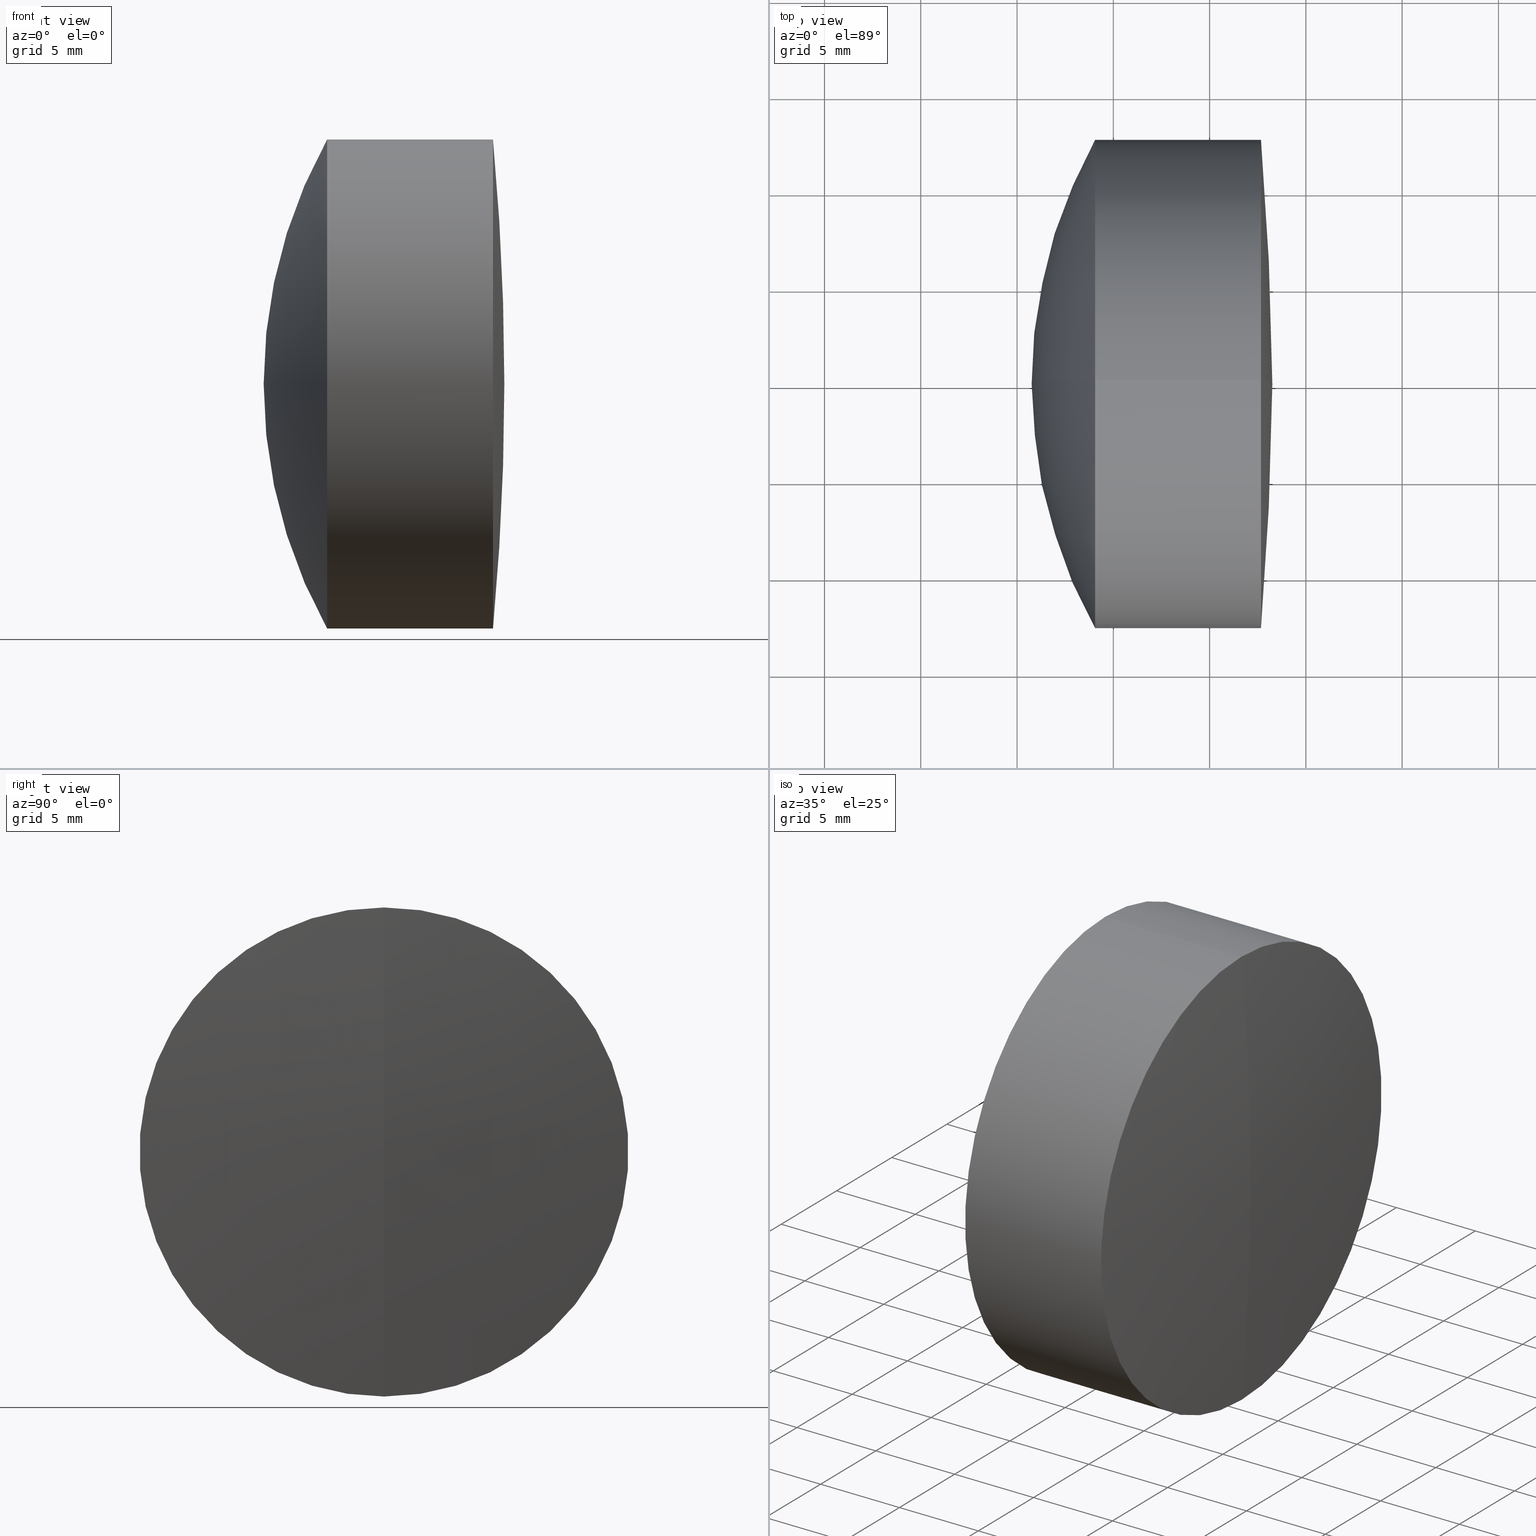
[diagram: canonical four-view strip — front | top / right | iso, engineering-drawing reading convention]
A machine part, canonical four-view strip (front | top / right | iso — engineering-drawing reading convention). The complete STEP part file that produces these views, byte-faithful:
ISO-10303-21;
HEADER;
FILE_DESCRIPTION (( 'STEP AP214' ),
    '1' );
FILE_NAME ('145116.STEP',
    '2019-05-31T03:07:53',
    ( 'user' ),
    ( '΢���й�' ),
    'SwSTEP 2.0',
    'SolidWorks 2016',
    '' );
FILE_SCHEMA (( 'AUTOMOTIVE_DESIGN' ));
ENDSEC;

DATA;
#1 = CARTESIAN_POINT ( 'NONE',  ( 285.7589865545651300, 0.0000000000000000000, 8.241918098200011900E-015 ) ) ;
#2 = DIRECTION ( 'NONE',  ( 0.0000000000000000000, 0.0000000000000000000, 1.000000000000000000 ) ) ;
#3 = ORIENTED_EDGE ( 'NONE', *, *, #254, .F. ) ;
#4 = VECTOR ( 'NONE', #186, 1000.000000000000000 ) ;
#5 = ADVANCED_FACE ( 'NONE', ( #118 ), #154, .T. ) ;
#6 = FILL_AREA_STYLE_COLOUR ( '', #114 ) ;
#7 = EDGE_LOOP ( 'NONE', ( #272, #172, #19, #205 ) ) ;
#8 = APPLICATION_PROTOCOL_DEFINITION ( 'draft international standard', 'automotive_design', 1998, #170 ) ;
#9 = DIRECTION ( 'NONE',  ( -1.000000000000000000, -0.0000000000000000000, -0.0000000000000000000 ) ) ;
#10 = ORIENTED_EDGE ( 'NONE', *, *, #284, .T. ) ;
#11 = MECHANICAL_DESIGN_GEOMETRIC_PRESENTATION_REPRESENTATION (  '', ( #321 ), #29 ) ;
#12 = DIRECTION ( 'NONE',  ( 0.0000000000000000000, 1.000000000000000000, 0.0000000000000000000 ) ) ;
#13 = MANIFOLD_SOLID_BREP ( '��ת3', #105 ) ;
#14 = ORIENTED_EDGE ( 'NONE', *, *, #165, .T. ) ;
#15 =( NAMED_UNIT ( * ) PLANE_ANGLE_UNIT ( ) SI_UNIT ( $, .RADIAN. ) );
#16 = PRESENTATION_LAYER_ASSIGNMENT (  '', '', ( #345 ) ) ;
#17 = ADVANCED_FACE ( 'NONE', ( #267 ), #291, .T. ) ;
#18 = MECHANICAL_DESIGN_GEOMETRIC_PRESENTATION_REPRESENTATION (  '', ( #329 ), #37 ) ;
#19 = ORIENTED_EDGE ( 'NONE', *, *, #274, .F. ) ;
#20 = CARTESIAN_POINT ( 'NONE',  ( 279.0543419790191700, -1.555301434917138400E-015, 12.70000000000001000 ) ) ;
#21 = CARTESIAN_POINT ( 'NONE',  ( 281.5537749866366000, 0.0000000000000000000, 0.0000000000000000000 ) ) ;
#22 = ORIENTED_EDGE ( 'NONE', *, *, #165, .F. ) ;
#23 = FACE_OUTER_BOUND ( 'NONE', #84, .T. ) ;
#24 = SURFACE_SIDE_STYLE ('',( #136 ) ) ;
#25 = DIRECTION ( 'NONE',  ( 0.0000000000000000000, 0.0000000000000000000, -1.000000000000000000 ) ) ;
#26 = DIRECTION ( 'NONE',  ( -0.0000000000000000000, 1.000000000000000000, 1.224646799147353200E-016 ) ) ;
#27 = CARTESIAN_POINT ( 'NONE',  ( 151.1689865545651800, 0.0000000000000000000, 0.0000000000000000000 ) ) ;
#28 = DIRECTION ( 'NONE',  ( -0.0000000000000000000, 1.000000000000000000, 1.224646799147353200E-016 ) ) ;
#29 =( GEOMETRIC_REPRESENTATION_CONTEXT ( 3 ) GLOBAL_UNCERTAINTY_ASSIGNED_CONTEXT ( ( #176 ) ) GLOBAL_UNIT_ASSIGNED_CONTEXT ( ( #61, #135, #81 ) ) REPRESENTATION_CONTEXT ( 'NONE', 'WORKASPACE' ) );
#30 = DIRECTION ( 'NONE',  ( 0.0000000000000000000, 0.0000000000000000000, -1.000000000000000000 ) ) ;
#31 = VERTEX_POINT ( 'NONE', #156 ) ;
#32 = DIRECTION ( 'NONE',  ( -1.000000000000000000, -0.0000000000000000000, -0.0000000000000000000 ) ) ;
#33 = CIRCLE ( 'NONE', #155, 12.69999999999997800 ) ;
#34 =( NAMED_UNIT ( * ) PLANE_ANGLE_UNIT ( ) SI_UNIT ( $, .RADIAN. ) );
#35 = ORIENTED_EDGE ( 'NONE', *, *, #294, .F. ) ;
#36 = MECHANICAL_DESIGN_GEOMETRIC_PRESENTATION_REPRESENTATION (  '', ( #345 ), #54 ) ;
#37 =( GEOMETRIC_REPRESENTATION_CONTEXT ( 3 ) GLOBAL_UNCERTAINTY_ASSIGNED_CONTEXT ( ( #298 ) ) GLOBAL_UNIT_ASSIGNED_CONTEXT ( ( #305, #110, #333 ) ) REPRESENTATION_CONTEXT ( 'NONE', 'WORKASPACE' ) );
#38 = DIRECTION ( 'NONE',  ( 0.0000000000000000000, 1.000000000000000000, 0.0000000000000000000 ) ) ;
#39 = SURFACE_STYLE_USAGE ( .BOTH. , #43 ) ;
#40 = ORIENTED_EDGE ( 'NONE', *, *, #235, .T. ) ;
#41 = CYLINDRICAL_SURFACE ( 'NONE', #231, 12.70000000000000800 ) ;
#42 = SHAPE_DEFINITION_REPRESENTATION ( #316, #90 ) ;
#43 = SURFACE_SIDE_STYLE ('',( #337 ) ) ;
#44 = CARTESIAN_POINT ( 'NONE',  ( 279.0543419790191700, 0.0000000000000000000, -12.69999999999999900 ) ) ;
#45 = ORIENTED_EDGE ( 'NONE', *, *, #284, .F. ) ;
#46 = DIRECTION ( 'NONE',  ( 0.0000000000000000000, 0.0000000000000000000, -1.000000000000000000 ) ) ;
#47 = AXIS2_PLACEMENT_3D ( 'NONE', #214, #28, #195 ) ;
#48 = EDGE_LOOP ( 'NONE', ( #10, #158, #339 ) ) ;
#49 = LINE ( 'NONE', #145, #177 ) ;
#50 = CARTESIAN_POINT ( 'NONE',  ( 124.5233095260452400, 0.0000000000000000000, 0.0000000000000000000 ) ) ;
#51 = EDGE_LOOP ( 'NONE', ( #336, #311, #229, #45 ) ) ;
#52 = DIRECTION ( 'NONE',  ( 0.0000000000000000000, 0.0000000000000000000, 1.000000000000000000 ) ) ;
#53 = EDGE_CURVE ( 'NONE', #240, #123, #332, .T. ) ;
#54 =( GEOMETRIC_REPRESENTATION_CONTEXT ( 3 ) GLOBAL_UNCERTAINTY_ASSIGNED_CONTEXT ( ( #247 ) ) GLOBAL_UNIT_ASSIGNED_CONTEXT ( ( #209, #15, #98 ) ) REPRESENTATION_CONTEXT ( 'NONE', 'WORKASPACE' ) );
#55 = APPLICATION_PROTOCOL_DEFINITION ( 'draft international standard', 'automotive_design', 1998, #64 ) ;
#56 = DIRECTION ( 'NONE',  ( 0.0000000000000000000, 1.224646799147353200E-016, -1.000000000000000000 ) ) ;
#57 = ORIENTED_EDGE ( 'NONE', *, *, #254, .T. ) ;
#58 = FACE_OUTER_BOUND ( 'NONE', #48, .T. ) ;
#59 = EDGE_CURVE ( 'NONE', #224, #142, #273, .T. ) ;
#60 = CIRCLE ( 'NONE', #47, 21.28000000000000100 ) ;
#61 =( LENGTH_UNIT ( ) NAMED_UNIT ( * ) SI_UNIT ( .MILLI., .METRE. ) );
#62 = ORIENTED_EDGE ( 'NONE', *, *, #221, .F. ) ;
#63 = FACE_OUTER_BOUND ( 'NONE', #7, .T. ) ;
#64 = APPLICATION_CONTEXT ( 'automotive_design' ) ;
#65 = DIRECTION ( 'NONE',  ( 0.0000000000000000000, 0.0000000000000000000, -1.000000000000000000 ) ) ;
#66 = CYLINDRICAL_SURFACE ( 'NONE', #147, 12.69999999999997100 ) ;
#67 = ADVANCED_FACE ( 'NONE', ( #63 ), #290, .T. ) ;
#68 =( NAMED_UNIT ( * ) SI_UNIT ( $, .STERADIAN. ) SOLID_ANGLE_UNIT ( ) );
#69 = EDGE_LOOP ( 'NONE', ( #174, #128, #132 ) ) ;
#70 = DIRECTION ( 'NONE',  ( 0.0000000000000000000, -1.224646799147353000E-016, 1.000000000000000000 ) ) ;
#71 = SURFACE_STYLE_USAGE ( .BOTH. , #24 ) ;
#72 = AXIS2_PLACEMENT_3D ( 'NONE', #317, #153, #243 ) ;
#73 = PRODUCT ( '145116', '145116', '', ( #164 ) ) ;
#74 = CIRCLE ( 'NONE', #92, 12.70000000000000800 ) ;
#75 = SPHERICAL_SURFACE ( 'NONE', #251, 21.27999999999999400 ) ;
#76 = DIRECTION ( 'NONE',  ( 0.0000000000000000000, -1.000000000000000000, 0.0000000000000000000 ) ) ;
#77 = DIRECTION ( 'NONE',  ( -1.000000000000000000, -0.0000000000000000000, -0.0000000000000000000 ) ) ;
#78 = ORIENTED_EDGE ( 'NONE', *, *, #53, .F. ) ;
#79 = DIRECTION ( 'NONE',  ( 0.0000000000000000000, 0.0000000000000000000, 1.000000000000000000 ) ) ;
#80 = CIRCLE ( 'NONE', #108, 12.70000000000000800 ) ;
#81 =( NAMED_UNIT ( * ) SI_UNIT ( $, .STERADIAN. ) SOLID_ANGLE_UNIT ( ) );
#82 = AXIS2_PLACEMENT_3D ( 'NONE', #146, #77, #340 ) ;
#83 = DIRECTION ( 'NONE',  ( 0.0000000000000000000, 0.0000000000000000000, 1.000000000000000000 ) ) ;
#84 = EDGE_LOOP ( 'NONE', ( #306, #278, #327 ) ) ;
#85 = AXIS2_PLACEMENT_3D ( 'NONE', #192, #217, #183 ) ;
#86 = DIRECTION ( 'NONE',  ( 0.0000000000000000000, 0.0000000000000000000, 1.000000000000000000 ) ) ;
#87 = DIRECTION ( 'NONE',  ( 0.0000000000000000000, -1.224646799147353000E-016, 1.000000000000000000 ) ) ;
#88 = VERTEX_POINT ( 'NONE', #180 ) ;
#89 = SPHERICAL_SURFACE ( 'NONE', #187, 26.11999999999998300 ) ;
#90 = ADVANCED_BREP_SHAPE_REPRESENTATION ( '145116', ( #232, #13, #85 ), #295 ) ;
#91 = DIRECTION ( 'NONE',  ( -1.000000000000000000, -0.0000000000000000000, -0.0000000000000000000 ) ) ;
#92 = AXIS2_PLACEMENT_3D ( 'NONE', #181, #32, #83 ) ;
#93 = CARTESIAN_POINT ( 'NONE',  ( 281.5537749866366000, 0.0000000000000000000, 0.0000000000000000000 ) ) ;
#94 = DIRECTION ( 'NONE',  ( 0.0000000000000000000, 1.000000000000000000, -0.0000000000000000000 ) ) ;
#95 = VERTEX_POINT ( 'NONE', #44 ) ;
#96 = CARTESIAN_POINT ( 'NONE',  ( 264.4789865545651500, 0.0000000000000000000, 6.938893903907228400E-015 ) ) ;
#97 = FILL_AREA_STYLE ('',( #264 ) ) ;
#98 =( NAMED_UNIT ( * ) SI_UNIT ( $, .STERADIAN. ) SOLID_ANGLE_UNIT ( ) );
#99 = AXIS2_PLACEMENT_3D ( 'NONE', #237, #104, #120 ) ;
#100 = DIRECTION ( 'NONE',  ( 0.0000000000000000000, 0.0000000000000000000, 1.000000000000000000 ) ) ;
#101 = PRODUCT_DEFINITION ( 'δ֪', '', #122, #190 ) ;
#102 = PRESENTATION_STYLE_ASSIGNMENT (( #39 ) ) ;
#103 = CARTESIAN_POINT ( 'NONE',  ( 301.8789865545651300, 0.0000000000000000000, 8.762794518350186300E-015 ) ) ;
#104 = DIRECTION ( 'NONE',  ( -0.0000000000000000000, -1.000000000000000000, -0.0000000000000000000 ) ) ;
#105 = CLOSED_SHELL ( 'NONE', ( #276, #244, #304, #308, #17, #5 ) ) ;
#106 = PRESENTATION_STYLE_ASSIGNMENT (( #133 ) ) ;
#107 = CARTESIAN_POINT ( 'NONE',  ( -0.5519199926577972300, 0.0000000000000000000, 0.0000000000000000000 ) ) ;
#108 = AXIS2_PLACEMENT_3D ( 'NONE', #143, #9, #86 ) ;
#109 = ORIENTED_EDGE ( 'NONE', *, *, #293, .T. ) ;
#110 =( NAMED_UNIT ( * ) PLANE_ANGLE_UNIT ( ) SI_UNIT ( $, .RADIAN. ) );
#111 = ADVANCED_FACE ( 'NONE', ( #58 ), #152, .T. ) ;
#112 = EDGE_CURVE ( 'NONE', #123, #224, #297, .T. ) ;
#113 = CLOSED_SHELL ( 'NONE', ( #197, #67, #111, #166, #193, #314 ) ) ;
#114 = COLOUR_RGB ( '',1.000000000000000000, 1.000000000000000000, 1.000000000000000000 ) ;
#115 = UNCERTAINTY_MEASURE_WITH_UNIT (LENGTH_MEASURE( 1.000000000000000100E-005 ), #270, 'distance_accuracy_value', 'NONE');
#116 = CARTESIAN_POINT ( 'NONE',  ( 151.1689865545651800, 0.0000000000000000000, 0.0000000000000000000 ) ) ;
#117 = ORIENTED_EDGE ( 'NONE', *, *, #221, .T. ) ;
#118 = FACE_OUTER_BOUND ( 'NONE', #300, .T. ) ;
#119 = DIRECTION ( 'NONE',  ( 0.0000000000000000000, 0.0000000000000000000, 1.000000000000000000 ) ) ;
#120 = DIRECTION ( 'NONE',  ( 0.0000000000000000000, 0.0000000000000000000, -1.000000000000000000 ) ) ;
#121 = AXIS2_PLACEMENT_3D ( 'NONE', #96, #157, #25 ) ;
#122 = PRODUCT_DEFINITION_FORMATION_WITH_SPECIFIED_SOURCE ( '�κ�', '', #73, .NOT_KNOWN. ) ;
#123 = VERTEX_POINT ( 'NONE', #241 ) ;
#124 = DIRECTION ( 'NONE',  ( -1.000000000000000000, -0.0000000000000000000, -0.0000000000000000000 ) ) ;
#125 = VERTEX_POINT ( 'NONE', #1 ) ;
#126 = CARTESIAN_POINT ( 'NONE',  ( 287.6694557845278800, 0.0000000000000000000, 0.0000000000000000000 ) ) ;
#127 = DIRECTION ( 'NONE',  ( -1.000000000000000000, -0.0000000000000000000, -0.0000000000000000000 ) ) ;
#128 = ORIENTED_EDGE ( 'NONE', *, *, #320, .T. ) ;
#129 = AXIS2_PLACEMENT_3D ( 'NONE', #220, #335, #70 ) ;
#130 = CARTESIAN_POINT ( 'NONE',  ( 151.1689865545651800, 0.0000000000000000000, 0.0000000000000000000 ) ) ;
#131 = ORIENTED_EDGE ( 'NONE', *, *, #137, .T. ) ;
#132 = ORIENTED_EDGE ( 'NONE', *, *, #196, .T. ) ;
#133 = SURFACE_STYLE_USAGE ( .BOTH. , #279 ) ;
#134 = FACE_OUTER_BOUND ( 'NONE', #51, .T. ) ;
#135 =( NAMED_UNIT ( * ) PLANE_ANGLE_UNIT ( ) SI_UNIT ( $, .RADIAN. ) );
#136 = SURFACE_STYLE_FILL_AREA ( #97 ) ;
#137 = EDGE_CURVE ( 'NONE', #125, #123, #285, .T. ) ;
#138 = AXIS2_PLACEMENT_3D ( 'NONE', #207, #150, #268 ) ;
#139 = DIRECTION ( 'NONE',  ( 0.0000000000000000000, 1.000000000000000000, 0.0000000000000000000 ) ) ;
#140 = PRODUCT_RELATED_PRODUCT_CATEGORY ( 'part', '', ( #73 ) ) ;
#141 = ORIENTED_EDGE ( 'NONE', *, *, #238, .F. ) ;
#142 = VERTEX_POINT ( 'NONE', #215 ) ;
#143 = CARTESIAN_POINT ( 'NONE',  ( 279.0543419790191700, 0.0000000000000000000, 0.0000000000000000000 ) ) ;
#144 = FACE_OUTER_BOUND ( 'NONE', #208, .T. ) ;
#145 = CARTESIAN_POINT ( 'NONE',  ( -0.5519199926577972300, 0.0000000000000000000, 12.69999999999997100 ) ) ;
#146 = CARTESIAN_POINT ( 'NONE',  ( -0.5519199926577972300, 0.0000000000000000000, 0.0000000000000000000 ) ) ;
#147 = AXIS2_PLACEMENT_3D ( 'NONE', #107, #91, #2 ) ;
#148 = EDGE_LOOP ( 'NONE', ( #313, #57, #323, #182 ) ) ;
#149 = CIRCLE ( 'NONE', #202, 12.69999999999996600 ) ;
#150 = DIRECTION ( 'NONE',  ( -1.000000000000000000, -0.0000000000000000000, -0.0000000000000000000 ) ) ;
#151 = VERTEX_POINT ( 'NONE', #318 ) ;
#152 = SPHERICAL_SURFACE ( 'NONE', #99, 26.11999999999998300 ) ;
#153 = DIRECTION ( 'NONE',  ( -1.000000000000000000, -0.0000000000000000000, -0.0000000000000000000 ) ) ;
#154 = SPHERICAL_SURFACE ( 'NONE', #328, 137.0900000000000000 ) ;
#155 = AXIS2_PLACEMENT_3D ( 'NONE', #93, #127, #119 ) ;
#156 = CARTESIAN_POINT ( 'NONE',  ( 281.5537749866366000, 1.555301434917136300E-015, -12.69999999999997100 ) ) ;
#157 = DIRECTION ( 'NONE',  ( 0.0000000000000000000, -1.000000000000000000, 0.0000000000000000000 ) ) ;
#158 = ORIENTED_EDGE ( 'NONE', *, *, #59, .T. ) ;
#159 = CIRCLE ( 'NONE', #173, 137.0900000000000000 ) ;
#160 = FACE_OUTER_BOUND ( 'NONE', #69, .T. ) ;
#161 = DIRECTION ( 'NONE',  ( 0.0000000000000000000, 0.0000000000000000000, 1.000000000000000000 ) ) ;
#162 = AXIS2_PLACEMENT_3D ( 'NONE', #246, #322, #184 ) ;
#163 = VERTEX_POINT ( 'NONE', #211 ) ;
#164 = PRODUCT_CONTEXT ( 'NONE', #64, 'mechanical' ) ;
#165 = EDGE_CURVE ( 'NONE', #31, #204, #33, .T. ) ;
#166 = ADVANCED_FACE ( 'NONE', ( #23 ), #89, .T. ) ;
#167 = DIRECTION ( 'NONE',  ( 0.0000000000000000000, 0.0000000000000000000, 1.000000000000000000 ) ) ;
#168 = EDGE_LOOP ( 'NONE', ( #262, #131, #78 ) ) ;
#169 = ORIENTED_EDGE ( 'NONE', *, *, #201, .F. ) ;
#170 = APPLICATION_CONTEXT ( 'automotive_design' ) ;
#171 = FACE_OUTER_BOUND ( 'NONE', #168, .T. ) ;
#172 = ORIENTED_EDGE ( 'NONE', *, *, #256, .T. ) ;
#173 = AXIS2_PLACEMENT_3D ( 'NONE', #258, #76, #46 ) ;
#174 = ORIENTED_EDGE ( 'NONE', *, *, #235, .F. ) ;
#175 = CARTESIAN_POINT ( 'NONE',  ( 124.5233095260452400, 0.0000000000000000000, 12.70000000000000800 ) ) ;
#176 = UNCERTAINTY_MEASURE_WITH_UNIT (LENGTH_MEASURE( 1.000000000000000100E-005 ), #61, 'distance_accuracy_value', 'NONE');
#177 = VECTOR ( 'NONE', #253, 1000.000000000000000 ) ;
#178 = CARTESIAN_POINT ( 'NONE',  ( 301.8789865545651300, 0.0000000000000000000, 8.762794518350186300E-015 ) ) ;
#179 = AXIS2_PLACEMENT_3D ( 'NONE', #116, #139, #330 ) ;
#180 = CARTESIAN_POINT ( 'NONE',  ( 285.7589865545651800, 0.0000000000000000000, 8.241918098200011900E-015 ) ) ;
#181 = CARTESIAN_POINT ( 'NONE',  ( 281.5537749866366000, 0.0000000000000000000, 0.0000000000000000000 ) ) ;
#182 = ORIENTED_EDGE ( 'NONE', *, *, #293, .F. ) ;
#183 = DIRECTION ( 'NONE',  ( 1.000000000000000000, 0.0000000000000000000, 0.0000000000000000000 ) ) ;
#184 = DIRECTION ( 'NONE',  ( 0.0000000000000000000, 0.0000000000000000000, 1.000000000000000000 ) ) ;
#185 = CIRCLE ( 'NONE', #303, 137.0900000000000000 ) ;
#186 = DIRECTION ( 'NONE',  ( -1.000000000000000000, -0.0000000000000000000, -0.0000000000000000000 ) ) ;
#187 = AXIS2_PLACEMENT_3D ( 'NONE', #103, #299, #30 ) ;
#188 = DIRECTION ( 'NONE',  ( 0.0000000000000000000, -1.000000000000000000, 0.0000000000000000000 ) ) ;
#189 = ORIENTED_EDGE ( 'NONE', *, *, #210, .T. ) ;
#190 = PRODUCT_DEFINITION_CONTEXT ( 'detailed design', #170, 'design' ) ;
#191 = CIRCLE ( 'NONE', #265, 12.69999999999996600 ) ;
#192 = CARTESIAN_POINT ( 'NONE',  ( 0.0000000000000000000, 0.0000000000000000000, 0.0000000000000000000 ) ) ;
#193 = ADVANCED_FACE ( 'NONE', ( #134 ), #41, .T. ) ;
#194 = SPHERICAL_SURFACE ( 'NONE', #257, 21.28000000000000100 ) ;
#195 = DIRECTION ( 'NONE',  ( 0.0000000000000000000, -1.224646799147353000E-016, 1.000000000000000000 ) ) ;
#196 = EDGE_CURVE ( 'NONE', #204, #31, #344, .T. ) ;
#197 = ADVANCED_FACE ( 'NONE', ( #199 ), #75, .T. ) ;
#198 = DIRECTION ( 'NONE',  ( -1.000000000000000000, -0.0000000000000000000, -0.0000000000000000000 ) ) ;
#199 = FACE_OUTER_BOUND ( 'NONE', #343, .T. ) ;
#200 = DIRECTION ( 'NONE',  ( 0.0000000000000000000, 0.0000000000000000000, 1.000000000000000000 ) ) ;
#201 = EDGE_CURVE ( 'NONE', #151, #277, #159, .T. ) ;
#202 = AXIS2_PLACEMENT_3D ( 'NONE', #283, #301, #227 ) ;
#203 = CARTESIAN_POINT ( 'NONE',  ( 281.5537749866366000, 0.0000000000000000000, 12.69999999999997800 ) ) ;
#204 = VERTEX_POINT ( 'NONE', #203 ) ;
#205 = ORIENTED_EDGE ( 'NONE', *, *, #112, .F. ) ;
#206 = FACE_OUTER_BOUND ( 'NONE', #148, .T. ) ;
#207 = CARTESIAN_POINT ( 'NONE',  ( 124.5233095260452400, 0.0000000000000000000, 0.0000000000000000000 ) ) ;
#208 = EDGE_LOOP ( 'NONE', ( #169, #117, #35 ) ) ;
#209 =( LENGTH_UNIT ( ) NAMED_UNIT ( * ) SI_UNIT ( .MILLI., .METRE. ) );
#210 = EDGE_CURVE ( 'NONE', #163, #277, #191, .T. ) ;
#211 = CARTESIAN_POINT ( 'NONE',  ( 287.6694557845278800, 1.555301434917134700E-015, -12.69999999999996600 ) ) ;
#212 = AXIS2_PLACEMENT_3D ( 'NONE', #21, #198, #100 ) ;
#213 = ORIENTED_EDGE ( 'NONE', *, *, #137, .F. ) ;
#214 = CARTESIAN_POINT ( 'NONE',  ( 264.4789865545651500, 0.0000000000000000000, 6.938893903907228400E-015 ) ) ;
#215 = CARTESIAN_POINT ( 'NONE',  ( 275.7589865545651800, 0.0000000000000000000, 7.163405798663743900E-015 ) ) ;
#216 = CIRCLE ( 'NONE', #129, 21.27999999999999400 ) ;
#217 = DIRECTION ( 'NONE',  ( 0.0000000000000000000, 0.0000000000000000000, 1.000000000000000000 ) ) ;
#218 = EDGE_CURVE ( 'NONE', #95, #142, #287, .T. ) ;
#219 = DIRECTION ( 'NONE',  ( 0.0000000000000000000, 0.0000000000000000000, 1.000000000000000000 ) ) ;
#220 = CARTESIAN_POINT ( 'NONE',  ( 264.4789865545651500, 0.0000000000000000000, 6.938893903907228400E-015 ) ) ;
#221 = EDGE_CURVE ( 'NONE', #151, #163, #185, .T. ) ;
#222 = DIRECTION ( 'NONE',  ( 0.0000000000000000000, 1.000000000000000000, 0.0000000000000000000 ) ) ;
#223 = AXIS2_PLACEMENT_3D ( 'NONE', #309, #188, #65 ) ;
#224 = VERTEX_POINT ( 'NONE', #20 ) ;
#225 = CARTESIAN_POINT ( 'NONE',  ( -0.5519199926577972300, 1.555301434917135100E-015, -12.69999999999997100 ) ) ;
#226 = LINE ( 'NONE', #334, #289 ) ;
#227 = DIRECTION ( 'NONE',  ( 0.0000000000000000000, 0.0000000000000000000, 1.000000000000000000 ) ) ;
#228 = DIRECTION ( 'NONE',  ( -1.000000000000000000, -0.0000000000000000000, -0.0000000000000000000 ) ) ;
#229 = ORIENTED_EDGE ( 'NONE', *, *, #112, .T. ) ;
#230 = DIRECTION ( 'NONE',  ( -1.000000000000000000, -0.0000000000000000000, -0.0000000000000000000 ) ) ;
#231 = AXIS2_PLACEMENT_3D ( 'NONE', #50, #261, #200 ) ;
#232 = MANIFOLD_SOLID_BREP ( '��ת1', #113 ) ;
#233 = EDGE_LOOP ( 'NONE', ( #266, #40, #14 ) ) ;
#234 = DIRECTION ( 'NONE',  ( 0.0000000000000000000, 1.000000000000000000, 0.0000000000000000000 ) ) ;
#235 = EDGE_CURVE ( 'NONE', #88, #31, #60, .T. ) ;
#236 = SPHERICAL_SURFACE ( 'NONE', #239, 21.28000000000000100 ) ;
#237 = CARTESIAN_POINT ( 'NONE',  ( 301.8789865545651300, 0.0000000000000000000, 8.762794518350186300E-015 ) ) ;
#238 = EDGE_CURVE ( 'NONE', #123, #240, #74, .T. ) ;
#239 = AXIS2_PLACEMENT_3D ( 'NONE', #242, #222, #161 ) ;
#240 = VERTEX_POINT ( 'NONE', #326 ) ;
#241 = CARTESIAN_POINT ( 'NONE',  ( 281.5537749866366000, 0.0000000000000000000, 12.70000000000000800 ) ) ;
#242 = CARTESIAN_POINT ( 'NONE',  ( 264.4789865545651500, 0.0000000000000000000, 6.938893903907228400E-015 ) ) ;
#243 = DIRECTION ( 'NONE',  ( 0.0000000000000000000, 0.0000000000000000000, 1.000000000000000000 ) ) ;
#244 = ADVANCED_FACE ( 'NONE', ( #206 ), #66, .T. ) ;
#245 = PRESENTATION_STYLE_ASSIGNMENT (( #71 ) ) ;
#246 = CARTESIAN_POINT ( 'NONE',  ( 279.0543419790191700, 0.0000000000000000000, 0.0000000000000000000 ) ) ;
#247 = UNCERTAINTY_MEASURE_WITH_UNIT (LENGTH_MEASURE( 1.000000000000000100E-005 ), #209, 'distance_accuracy_value', 'NONE');
#248 = CIRCLE ( 'NONE', #223, 21.28000000000000100 ) ;
#249 = EDGE_CURVE ( 'NONE', #125, #240, #216, .T. ) ;
#250 = ORIENTED_EDGE ( 'NONE', *, *, #249, .T. ) ;
#251 = AXIS2_PLACEMENT_3D ( 'NONE', #263, #234, #52 ) ;
#252 = VECTOR ( 'NONE', #124, 1000.000000000000000 ) ;
#253 = DIRECTION ( 'NONE',  ( -1.000000000000000000, -0.0000000000000000000, -0.0000000000000000000 ) ) ;
#254 = EDGE_CURVE ( 'NONE', #163, #31, #269, .T. ) ;
#255 = CARTESIAN_POINT ( 'NONE',  ( 264.4789865545651500, 0.0000000000000000000, 6.938893903907228400E-015 ) ) ;
#256 = EDGE_CURVE ( 'NONE', #240, #95, #226, .T. ) ;
#257 = AXIS2_PLACEMENT_3D ( 'NONE', #255, #38, #167 ) ;
#258 = CARTESIAN_POINT ( 'NONE',  ( 151.1689865545651800, 0.0000000000000000000, 0.0000000000000000000 ) ) ;
#259 = ORIENTED_EDGE ( 'NONE', *, *, #210, .F. ) ;
#260 = CIRCLE ( 'NONE', #162, 12.70000000000000800 ) ;
#261 = DIRECTION ( 'NONE',  ( -1.000000000000000000, -0.0000000000000000000, -0.0000000000000000000 ) ) ;
#262 = ORIENTED_EDGE ( 'NONE', *, *, #249, .F. ) ;
#263 = CARTESIAN_POINT ( 'NONE',  ( 264.4789865545651500, 0.0000000000000000000, 6.938893903907228400E-015 ) ) ;
#264 = FILL_AREA_STYLE_COLOUR ( '', #302 ) ;
#265 = AXIS2_PLACEMENT_3D ( 'NONE', #126, #230, #346 ) ;
#266 = ORIENTED_EDGE ( 'NONE', *, *, #320, .F. ) ;
#267 = FACE_OUTER_BOUND ( 'NONE', #282, .T. ) ;
#268 = DIRECTION ( 'NONE',  ( 0.0000000000000000000, 0.0000000000000000000, 1.000000000000000000 ) ) ;
#269 = LINE ( 'NONE', #225, #4 ) ;
#270 =( LENGTH_UNIT ( ) NAMED_UNIT ( * ) SI_UNIT ( .MILLI., .METRE. ) );
#271 = CARTESIAN_POINT ( 'NONE',  ( 264.4789865545651500, 0.0000000000000000000, 6.938893903907228400E-015 ) ) ;
#272 = ORIENTED_EDGE ( 'NONE', *, *, #238, .T. ) ;
#273 = CIRCLE ( 'NONE', #310, 26.11999999999998300 ) ;
#274 = EDGE_CURVE ( 'NONE', #224, #95, #80, .T. ) ;
#275 = AXIS2_PLACEMENT_3D ( 'NONE', #271, #12, #219 ) ;
#276 = ADVANCED_FACE ( 'NONE', ( #144 ), #341, .T. ) ;
#277 = VERTEX_POINT ( 'NONE', #325 ) ;
#278 = ORIENTED_EDGE ( 'NONE', *, *, #274, .T. ) ;
#279 = SURFACE_SIDE_STYLE ('',( #315 ) ) ;
#280 = FACE_OUTER_BOUND ( 'NONE', #233, .T. ) ;
#281 = FILL_AREA_STYLE ('',( #6 ) ) ;
#282 = EDGE_LOOP ( 'NONE', ( #3, #189, #109, #22 ) ) ;
#283 = CARTESIAN_POINT ( 'NONE',  ( 287.6694557845278800, 0.0000000000000000000, 0.0000000000000000000 ) ) ;
#284 = EDGE_CURVE ( 'NONE', #95, #224, #260, .T. ) ;
#285 = CIRCLE ( 'NONE', #121, 21.27999999999999400 ) ;
#286 = AXIS2_PLACEMENT_3D ( 'NONE', #178, #94, #296 ) ;
#287 = CIRCLE ( 'NONE', #286, 26.11999999999998300 ) ;
#288 = DIRECTION ( 'NONE',  ( 0.0000000000000000000, 1.000000000000000000, 0.0000000000000000000 ) ) ;
#289 = VECTOR ( 'NONE', #228, 1000.000000000000000 ) ;
#290 = CYLINDRICAL_SURFACE ( 'NONE', #138, 12.70000000000000800 ) ;
#291 = CYLINDRICAL_SURFACE ( 'NONE', #82, 12.69999999999997100 ) ;
#292 = FILL_AREA_STYLE_COLOUR ( '', #307 ) ;
#293 = EDGE_CURVE ( 'NONE', #277, #204, #49, .T. ) ;
#294 = EDGE_CURVE ( 'NONE', #277, #163, #149, .T. ) ;
#295 =( GEOMETRIC_REPRESENTATION_CONTEXT ( 3 ) GLOBAL_UNCERTAINTY_ASSIGNED_CONTEXT ( ( #115 ) ) GLOBAL_UNIT_ASSIGNED_CONTEXT ( ( #270, #34, #68 ) ) REPRESENTATION_CONTEXT ( 'NONE', 'WORKASPACE' ) );
#296 = DIRECTION ( 'NONE',  ( 0.0000000000000000000, 0.0000000000000000000, 1.000000000000000000 ) ) ;
#297 = LINE ( 'NONE', #175, #252 ) ;
#298 = UNCERTAINTY_MEASURE_WITH_UNIT (LENGTH_MEASURE( 1.000000000000000100E-005 ), #305, 'distance_accuracy_value', 'NONE');
#299 = DIRECTION ( 'NONE',  ( -0.0000000000000000000, -1.000000000000000000, -0.0000000000000000000 ) ) ;
#300 = EDGE_LOOP ( 'NONE', ( #62, #331, #259 ) ) ;
#301 = DIRECTION ( 'NONE',  ( -1.000000000000000000, -0.0000000000000000000, -0.0000000000000000000 ) ) ;
#302 = COLOUR_RGB ( '',1.000000000000000000, 1.000000000000000000, 1.000000000000000000 ) ;
#303 = AXIS2_PLACEMENT_3D ( 'NONE', #130, #26, #87 ) ;
#304 = ADVANCED_FACE ( 'NONE', ( #280 ), #236, .F. ) ;
#305 =( LENGTH_UNIT ( ) NAMED_UNIT ( * ) SI_UNIT ( .MILLI., .METRE. ) );
#306 = ORIENTED_EDGE ( 'NONE', *, *, #59, .F. ) ;
#307 = COLOUR_RGB ( '',1.000000000000000000, 1.000000000000000000, 1.000000000000000000 ) ;
#308 = ADVANCED_FACE ( 'NONE', ( #160 ), #194, .F. ) ;
#309 = CARTESIAN_POINT ( 'NONE',  ( 264.4789865545651500, 0.0000000000000000000, 6.938893903907228400E-015 ) ) ;
#310 = AXIS2_PLACEMENT_3D ( 'NONE', #342, #319, #56 ) ;
#311 = ORIENTED_EDGE ( 'NONE', *, *, #53, .T. ) ;
#312 = FILL_AREA_STYLE ('',( #292 ) ) ;
#313 = ORIENTED_EDGE ( 'NONE', *, *, #294, .T. ) ;
#314 = ADVANCED_FACE ( 'NONE', ( #171 ), #324, .T. ) ;
#315 = SURFACE_STYLE_FILL_AREA ( #312 ) ;
#316 = PRODUCT_DEFINITION_SHAPE ( 'NONE', 'NONE',  #101 ) ;
#317 = CARTESIAN_POINT ( 'NONE',  ( 281.5537749866366000, 0.0000000000000000000, 0.0000000000000000000 ) ) ;
#318 = CARTESIAN_POINT ( 'NONE',  ( 288.2589865545651800, 0.0000000000000000000, 8.394341484755531600E-015 ) ) ;
#319 = DIRECTION ( 'NONE',  ( 0.0000000000000000000, -1.000000000000000000, -1.224646799147353200E-016 ) ) ;
#320 = EDGE_CURVE ( 'NONE', #88, #204, #248, .T. ) ;
#321 = STYLED_ITEM ( 'NONE', ( #106 ), #232 ) ;
#322 = DIRECTION ( 'NONE',  ( -1.000000000000000000, -0.0000000000000000000, -0.0000000000000000000 ) ) ;
#323 = ORIENTED_EDGE ( 'NONE', *, *, #196, .F. ) ;
#324 = SPHERICAL_SURFACE ( 'NONE', #275, 21.27999999999999400 ) ;
#325 = CARTESIAN_POINT ( 'NONE',  ( 287.6694557845278800, 0.0000000000000000000, 12.69999999999996600 ) ) ;
#326 = CARTESIAN_POINT ( 'NONE',  ( 281.5537749866366000, 1.555301434917139400E-015, -12.70000000000000800 ) ) ;
#327 = ORIENTED_EDGE ( 'NONE', *, *, #218, .T. ) ;
#328 = AXIS2_PLACEMENT_3D ( 'NONE', #27, #288, #79 ) ;
#329 = STYLED_ITEM ( 'NONE', ( #102 ), #90 ) ;
#330 = DIRECTION ( 'NONE',  ( 0.0000000000000000000, 0.0000000000000000000, 1.000000000000000000 ) ) ;
#331 = ORIENTED_EDGE ( 'NONE', *, *, #201, .T. ) ;
#332 = CIRCLE ( 'NONE', #72, 12.70000000000000800 ) ;
#333 =( NAMED_UNIT ( * ) SI_UNIT ( $, .STERADIAN. ) SOLID_ANGLE_UNIT ( ) );
#334 = CARTESIAN_POINT ( 'NONE',  ( 124.5233095260452400, 1.555301434917139400E-015, -12.70000000000000800 ) ) ;
#335 = DIRECTION ( 'NONE',  ( -0.0000000000000000000, 1.000000000000000000, 1.224646799147353200E-016 ) ) ;
#336 = ORIENTED_EDGE ( 'NONE', *, *, #256, .F. ) ;
#337 = SURFACE_STYLE_FILL_AREA ( #281 ) ;
#338 = PRESENTATION_LAYER_ASSIGNMENT (  '', '', ( #321 ) ) ;
#339 = ORIENTED_EDGE ( 'NONE', *, *, #218, .F. ) ;
#340 = DIRECTION ( 'NONE',  ( 0.0000000000000000000, 0.0000000000000000000, 1.000000000000000000 ) ) ;
#341 = SPHERICAL_SURFACE ( 'NONE', #179, 137.0900000000000000 ) ;
#342 = CARTESIAN_POINT ( 'NONE',  ( 301.8789865545651300, 0.0000000000000000000, 8.762794518350186300E-015 ) ) ;
#343 = EDGE_LOOP ( 'NONE', ( #213, #250, #141 ) ) ;
#344 = CIRCLE ( 'NONE', #212, 12.69999999999997800 ) ;
#345 = STYLED_ITEM ( 'NONE', ( #245 ), #13 ) ;
#346 = DIRECTION ( 'NONE',  ( 0.0000000000000000000, 0.0000000000000000000, 1.000000000000000000 ) ) ;
#347 = PRESENTATION_LAYER_ASSIGNMENT (  '', '', ( #329 ) ) ;
ENDSEC;
END-ISO-10303-21;
